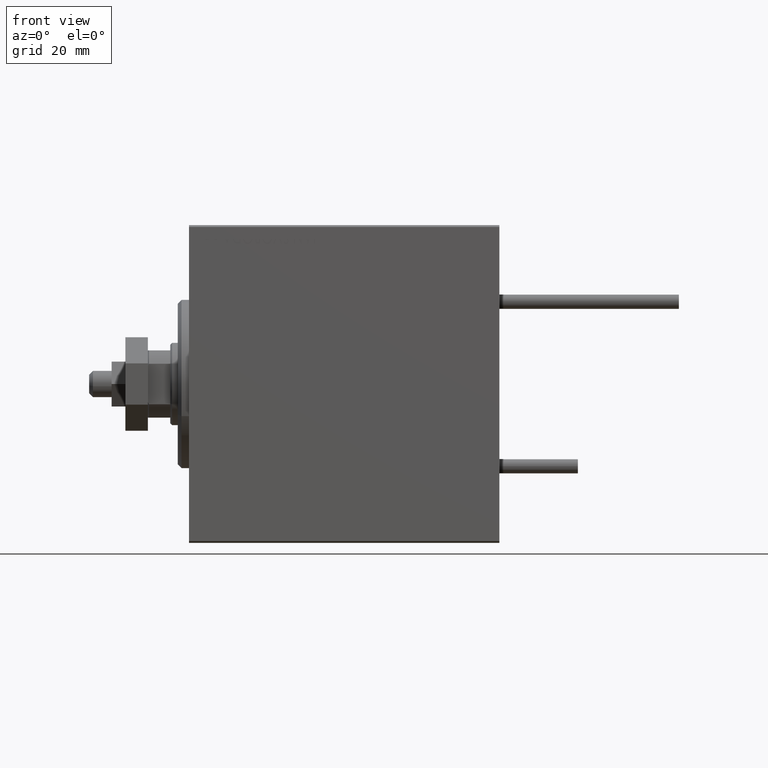
[diagram: clean part render]
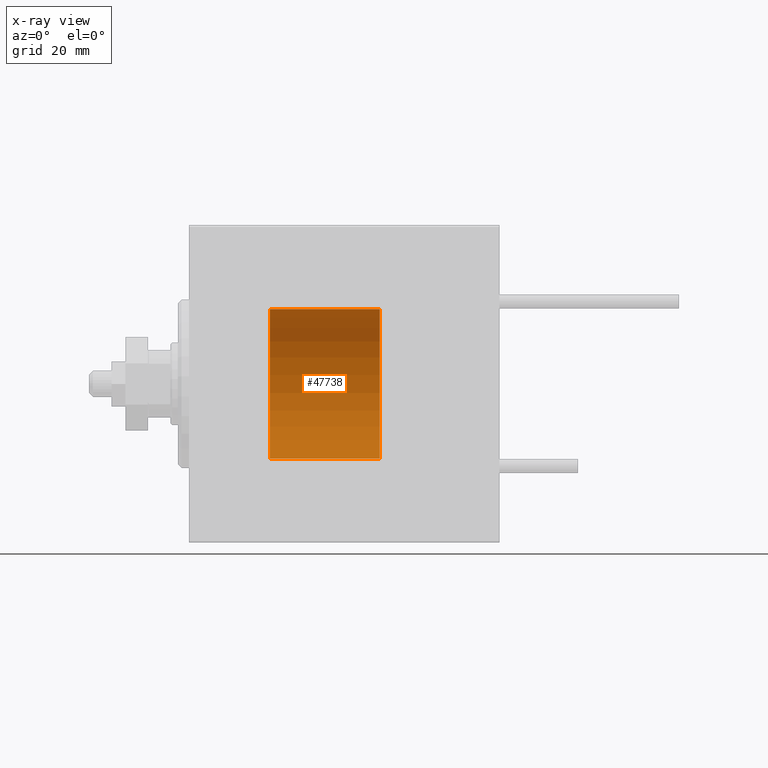
[diagram: x-ray — body ghosted, one internal face saturated and labeled with its STEP entity id]
A machine part, front view, then the same camera in x-ray: the body is ghosted and one INTERNAL B-rep face — a face not visible from any outside direction — is saturated and labeled: STEP entity #47738.
In plain terms, the highlighted cylindrical surface (partial cylindrical patch) has radius 20 mm, axis along (-1, -0, -0).
Its self-contained STEP definition (entity closure, byte-faithful):
#1282 = EDGE_CURVE ( 'NONE', #12202, #15824, #15327, .T. ) ;
#2266 = EDGE_CURVE ( 'NONE', #15824, #49892, #16218, .T. ) ;
#3054 = CIRCLE ( 'NONE', #40233, 20.00000000000000000 ) ;
#5048 = ORIENTED_EDGE ( 'NONE', *, *, #2266, .T. ) ;
#5345 = ORIENTED_EDGE ( 'NONE', *, *, #1282, .T. ) ;
#8559 = DIRECTION ( 'NONE',  ( 0.000000000000000000, 0.000000000000000000, 1.000000000000000000 ) ) ;
#9986 = DIRECTION ( 'NONE',  ( -1.000000000000000000, 0.000000000000000000, 0.000000000000000000 ) ) ;
#12202 = VERTEX_POINT ( 'NONE', #17742 ) ;
#12300 = EDGE_CURVE ( 'NONE', #48073, #49892, #34817, .T. ) ;
#13923 = CARTESIAN_POINT ( 'NONE',  ( 21.60000000000000142, 2.449293598294706513E-15, -20.00000000000000000 ) ) ;
#15327 = LINE ( 'NONE', #19384, #21868 ) ;
#15521 = DIRECTION ( 'NONE',  ( 0.000000000000000000, 0.000000000000000000, 1.000000000000000000 ) ) ;
#15824 = VERTEX_POINT ( 'NONE', #31567 ) ;
#16218 = CIRCLE ( 'NONE', #17844, 20.00000000000000000 ) ;
#17742 = CARTESIAN_POINT ( 'NONE',  ( 51.00000000000000000, 0.000000000000000000, 20.00000000000000000 ) ) ;
#17844 = AXIS2_PLACEMENT_3D ( 'NONE', #36567, #9986, #28742 ) ;
#19134 = DIRECTION ( 'NONE',  ( -1.000000000000000000, -0.000000000000000000, -0.000000000000000000 ) ) ;
#19218 = CARTESIAN_POINT ( 'NONE',  ( 51.00000000000000000, 0.000000000000000000, 0.000000000000000000 ) ) ;
#19384 = CARTESIAN_POINT ( 'NONE',  ( 51.00000000000000000, 0.000000000000000000, 20.00000000000000000 ) ) ;
#20524 = VECTOR ( 'NONE', #46203, 1000.000000000000000 ) ;
#21868 = VECTOR ( 'NONE', #19134, 1000.000000000000000 ) ;
#23104 = EDGE_LOOP ( 'NONE', ( #49388, #45553, #5345, #5048 ) ) ;
#23531 = DIRECTION ( 'NONE',  ( -1.000000000000000000, -0.000000000000000000, -0.000000000000000000 ) ) ;
#25010 = AXIS2_PLACEMENT_3D ( 'NONE', #19218, #23531, #8559 ) ;
#28561 = EDGE_CURVE ( 'NONE', #12202, #48073, #3054, .T. ) ;
#28742 = DIRECTION ( 'NONE',  ( 0.000000000000000000, 0.000000000000000000, 1.000000000000000000 ) ) ;
#30820 = CARTESIAN_POINT ( 'NONE',  ( 51.00000000000000000, 2.449293598294706513E-15, -20.00000000000000000 ) ) ;
#31220 = CARTESIAN_POINT ( 'NONE',  ( 51.00000000000000000, 0.000000000000000000, 0.000000000000000000 ) ) ;
#31567 = CARTESIAN_POINT ( 'NONE',  ( 21.60000000000000142, 0.000000000000000000, 20.00000000000000000 ) ) ;
#34817 = LINE ( 'NONE', #43375, #20524 ) ;
#36567 = CARTESIAN_POINT ( 'NONE',  ( 21.60000000000000142, 0.000000000000000000, 0.000000000000000000 ) ) ;
#38786 = DIRECTION ( 'NONE',  ( -1.000000000000000000, 0.000000000000000000, 0.000000000000000000 ) ) ;
#40233 = AXIS2_PLACEMENT_3D ( 'NONE', #31220, #38786, #15521 ) ;
#43226 = FACE_OUTER_BOUND ( 'NONE', #23104, .T. ) ;
#43375 = CARTESIAN_POINT ( 'NONE',  ( 51.00000000000000000, 2.449293598294706513E-15, -20.00000000000000000 ) ) ;
#45553 = ORIENTED_EDGE ( 'NONE', *, *, #28561, .F. ) ;
#46203 = DIRECTION ( 'NONE',  ( -1.000000000000000000, -0.000000000000000000, -0.000000000000000000 ) ) ;
#47738 = ADVANCED_FACE ( 'NONE', ( #43226 ), #49842, .F. ) ;
#48073 = VERTEX_POINT ( 'NONE', #30820 ) ;
#49388 = ORIENTED_EDGE ( 'NONE', *, *, #12300, .F. ) ;
#49842 = CYLINDRICAL_SURFACE ( 'NONE', #25010, 20.00000000000000000 ) ;
#49892 = VERTEX_POINT ( 'NONE', #13923 ) ;